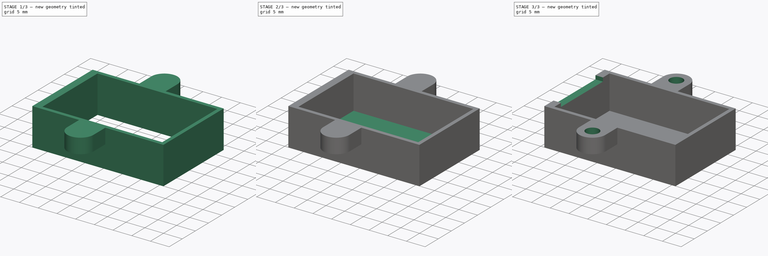
[diagram: build sequence overview — one tinted view per stage of 3, left to right]
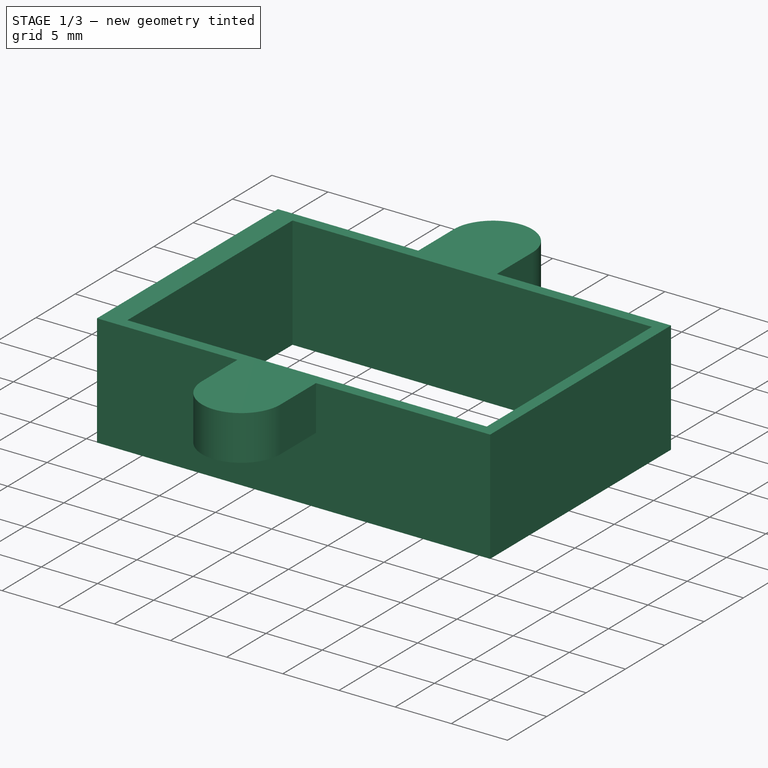
[diagram: stage 1 of 3 — iso view after this stage's code; geometry added in this stage tinted green]
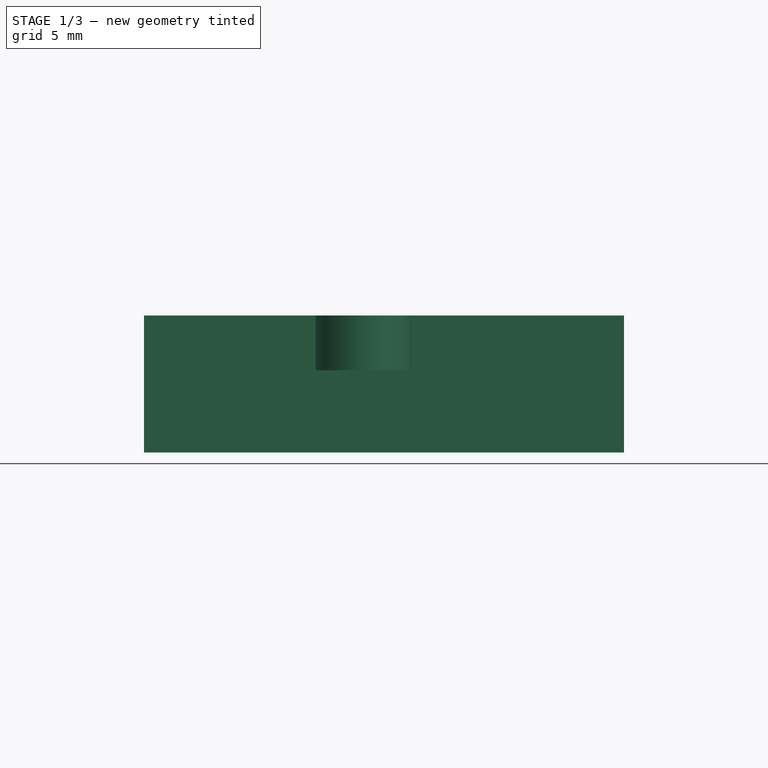
[diagram: stage 1 of 3 — front view after this stage's code; geometry added in this stage tinted green]
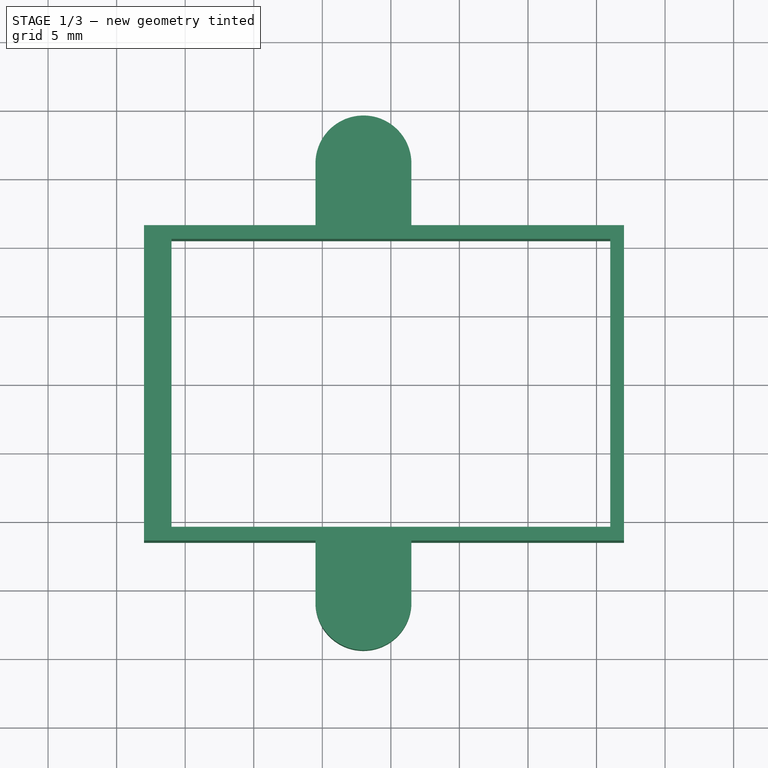
[diagram: stage 1 of 3 — top view after this stage's code; geometry added in this stage tinted green]
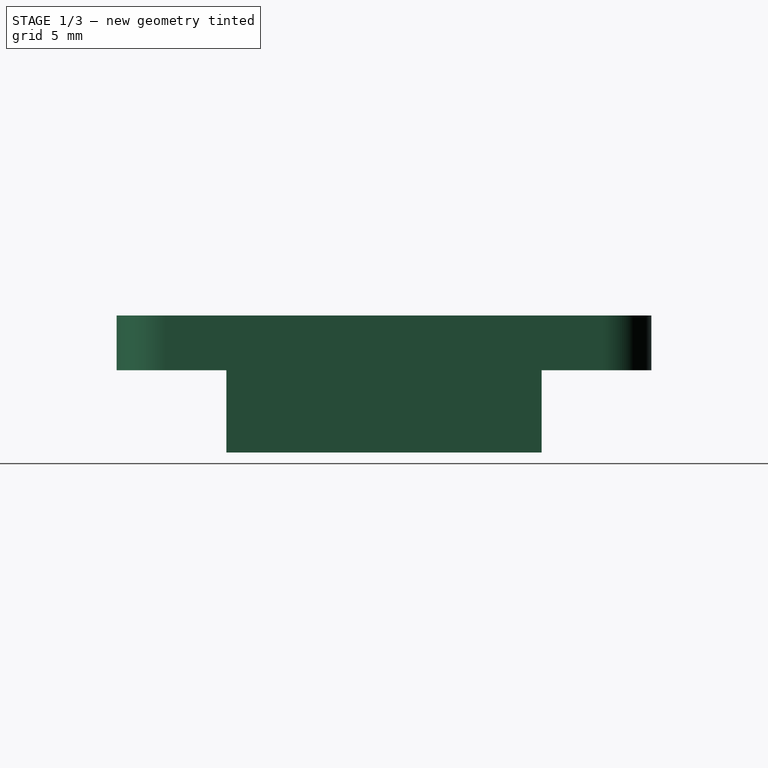
[diagram: stage 1 of 3 — right view after this stage's code; geometry added in this stage tinted green]
FCSTD DOCUMENT  (FreeCAD 1.0R38641 +678 (Git))
Label: accel-box
License: All rights reserved
LicenseURL: https://en.wikipedia.org/wiki/All_rights_reserved
objects: Sketcher::SketchObject×5, PartDesign::Pad×3, PartDesign::Pocket×1, PartDesign::Hole×1, PartDesign::Body×1
note: 26 computed .brp shape members not serialized (recipe doc carries the construction recipe); baked Part::Feature solids carry a one-line shape summary decoded from their .brp

FEATURE [Sketcher::SketchObject] Sketch270
  ArcFitTolerance = 0
  FullyConstrained = true
  MakeInternals = false
  MapMode = 5
  Placement = pos=(0,0,-20) rot=(1,0,0;3.14159rad)
  sketch-geometry (20):
    g0: LineSegment [constr] StartX=-4 StartY=10.5 StartZ=0 EndX=-4 EndY=-10.5 EndZ=0
    g1: LineSegment [constr] StartX=-4 StartY=-10.5 StartZ=0 EndX=-36 EndY=-10.5 EndZ=0
    g2: LineSegment [constr] StartX=-4 StartY=10.5 StartZ=0 EndX=-36 EndY=10.5 EndZ=0
    g3: LineSegment [constr] StartX=-36 StartY=10.5 StartZ=0 EndX=-36 EndY=-10.5 EndZ=0
    g4: ArcOfCircle CenterX=-22 CenterY=16 CenterZ=0 NormalX=0 NormalY=0 NormalZ=1 AngleXU=0 Radius=3.5 StartAngle=0 EndAngle=3.14159
    g5: ArcOfCircle CenterX=-22 CenterY=-16 CenterZ=0 NormalX=0 NormalY=0 NormalZ=1 AngleXU=0 Radius=3.5 StartAngle=3.14159 EndAngle=6.28319
    g6: LineSegment StartX=-3 StartY=11.5 StartZ=0 EndX=-18.5 EndY=11.5 EndZ=0
    g7: LineSegment StartX=-38 StartY=11.5 StartZ=0 EndX=-38 EndY=-11.5 EndZ=0
    g8: LineSegment StartX=-38 StartY=-11.5 StartZ=0 EndX=-25.5 EndY=-11.5 EndZ=0
    g9: LineSegment StartX=-3 StartY=11.5 StartZ=0 EndX=-3 EndY=-11.5 EndZ=0
    g10: LineSegment StartX=-36 StartY=10.5 StartZ=0 EndX=-36 EndY=-10.5 EndZ=0
    g11: LineSegment StartX=-36 StartY=-10.5 StartZ=0 EndX=-4 EndY=-10.5 EndZ=0
    g12: LineSegment StartX=-4 StartY=-10.5 StartZ=0 EndX=-4 EndY=10.5 EndZ=0
    g13: LineSegment StartX=-4 StartY=10.5 StartZ=0 EndX=-36 EndY=10.5 EndZ=0
    g14: LineSegment StartX=-25.5 StartY=11.5 StartZ=0 EndX=-25.5 EndY=16 EndZ=0
    g15: LineSegment StartX=-18.5 StartY=11.5 StartZ=0 EndX=-18.5 EndY=16 EndZ=0
    g16: LineSegment StartX=-25.5 StartY=11.5 StartZ=0 EndX=-38 EndY=11.5 EndZ=0
    g17: LineSegment StartX=-25.5 StartY=-11.5 StartZ=0 EndX=-25.5 EndY=-16 EndZ=0
    g18: LineSegment StartX=-18.5 StartY=-11.5 StartZ=0 EndX=-18.5 EndY=-16 EndZ=0
    g19: LineSegment StartX=-18.5 StartY=-11.5 StartZ=0 EndX=-3 EndY=-11.5 EndZ=0
  constraints (54):
    c: Vertical(g0)
    c: Coincident(g1,g0)
    c: Horizontal(g1)
    c: Coincident(g2,g0)
    c: Horizontal(g2)
    c: Coincident(g3,g2)
    c: Coincident(g3,g1)
    c: Vertical(g3)
    c: Distance(g0) = 21
    c: Distance(g1) = 32
    c: Distance(g-1,g2) = 10.5
    c: Distance(g-1,g0) = 4
    c: Diameter(g4) = 7
    c: DistanceY(g-1,g4) = 16
    c: DistanceY(g-1,g5) = -16
    c: DistanceX(g-2,g4) = -22
    c: DistanceX(g-2,g5) = -22
    c: Equal(g5,g4)
    c: Horizontal(g6)
    c: Coincident(g7,g16)
    c: Vertical(g7)
    c: Coincident(g8,g7)
    c: Horizontal(g8)
    c: Coincident(g9,g6)
    c: Coincident(g9,g19)
    c: Vertical(g9)
    c: Coincident(g10,g2)
    c: Coincident(g10,g1)
    c: Coincident(g11,g10)
    c: Coincident(g11,g0)
    c: Coincident(g12,g11)
    c: Coincident(g12,g0)
    c: Coincident(g13,g12)
    c: Coincident(g13,g10)
    c: Distance(g12,g6) = 1
    c: Distance(g16,g10) = 2
    c: Distance(g19,g11) = 1
    c: Vertical(g14)
    c: Vertical(g15)
    c: Tangent(g4,g14) = 1.5708
    c: Tangent(g4,g15) = -1.5708
    c: Coincident(g6,g15)
    c: Coincident(g16,g14)
    c: Distance(g10,g16) = 1
    c: Horizontal(g16)
    c: Vertical(g18)
    c: Vertical(g17)
    c: Coincident(g8,g17)
    c: Coincident(g19,g18)
    c: Tangent(g5,g18) = 1.5708
    c: Tangent(g5,g17) = -1.5708
    c: Horizontal(g19)
    c: Distance(g10,g8) = 1
    c: Distance(g12,g9) = 1
FEATURE [PartDesign::Pad] Pad127
  Direction = (0,-1e-16,-1)
  Length = 4
  Length2 = 10
  Placement = pos=(0,0,-20) rot=(1,0,0;3.14159rad)
  Profile = -> Sketch270
  ReferenceAxis = -> Sketch270 [N_Axis]
  Suppressed = false
  Type = 0
FEATURE [Sketcher::SketchObject] Sketch271
  ArcFitTolerance = 0
  FullyConstrained = true
  MakeInternals = false
  MapMode = 5
  Placement = pos=(0,0,-20) rot=(1,0,0;3.14159rad)
  sketch-geometry (12):
    g0: LineSegment [constr] StartX=-4 StartY=10.5 StartZ=0 EndX=-4 EndY=-10.5 EndZ=0
    g1: LineSegment [constr] StartX=-4 StartY=-10.5 StartZ=0 EndX=-36 EndY=-10.5 EndZ=0
    g2: LineSegment [constr] StartX=-4 StartY=10.5 StartZ=0 EndX=-36 EndY=10.5 EndZ=0
    g3: LineSegment [constr] StartX=-36 StartY=10.5 StartZ=0 EndX=-36 EndY=-10.5 EndZ=0
    g4: LineSegment StartX=-38 StartY=11.5 StartZ=0 EndX=-38 EndY=-11.5 EndZ=0
    g5: LineSegment StartX=-38 StartY=-11.5 StartZ=0 EndX=-3 EndY=-11.5 EndZ=0
    g6: LineSegment StartX=-3 StartY=11.5 StartZ=0 EndX=-3 EndY=-11.5 EndZ=0
    g7: LineSegment StartX=-36 StartY=10.5 StartZ=0 EndX=-36 EndY=-10.5 EndZ=0
    g8: LineSegment StartX=-36 StartY=-10.5 StartZ=0 EndX=-4 EndY=-10.5 EndZ=0
    g9: LineSegment StartX=-4 StartY=-10.5 StartZ=0 EndX=-4 EndY=10.5 EndZ=0
    g10: LineSegment StartX=-4 StartY=10.5 StartZ=0 EndX=-36 EndY=10.5 EndZ=0
    g11: LineSegment StartX=-3 StartY=11.5 StartZ=0 EndX=-38 EndY=11.5 EndZ=0
  constraints (32):
    c: Vertical(g0)
    c: Coincident(g1,g0)
    c: Horizontal(g1)
    c: Coincident(g2,g0)
    c: Horizontal(g2)
    c: Coincident(g3,g2)
    c: Coincident(g3,g1)
    c: Vertical(g3)
    c: Distance(g0) = 21
    c: Distance(g1) = 32
    c: Distance(g-1,g2) = 10.5
    c: Distance(g-1,g0) = 4
    c: Coincident(g4,g11)
    c: Vertical(g4)
    c: Coincident(g5,g4)
    c: Horizontal(g5)
    c: Vertical(g6)
    c: Coincident(g7,g2)
    c: Coincident(g7,g1)
    c: Coincident(g8,g7)
    c: Coincident(g8,g0)
    c: Coincident(g9,g8)
    c: Coincident(g9,g0)
    c: Coincident(g10,g9)
    c: Coincident(g10,g7)
    c: Distance(g11,g7) = 2
    c: Distance(g7,g11) = 1
    c: Horizontal(g11)
    c: Distance(g7,g5) = 1
    c: Coincident(g11,g6)
    c: Coincident(g5,g6)
    c: Distance(g9,g6) = 1
FEATURE [PartDesign::Pad] Pad128
  BaseFeature = -> Pad127
  Direction = (0,-1e-16,-1)
  Length = 10
  Length2 = 10
  Placement = pos=(0,0,-20) rot=(1,0,0;3.14159rad)
  Profile = -> Sketch271
  ReferenceAxis = -> Sketch271 [N_Axis]
  Suppressed = false
  Type = 0
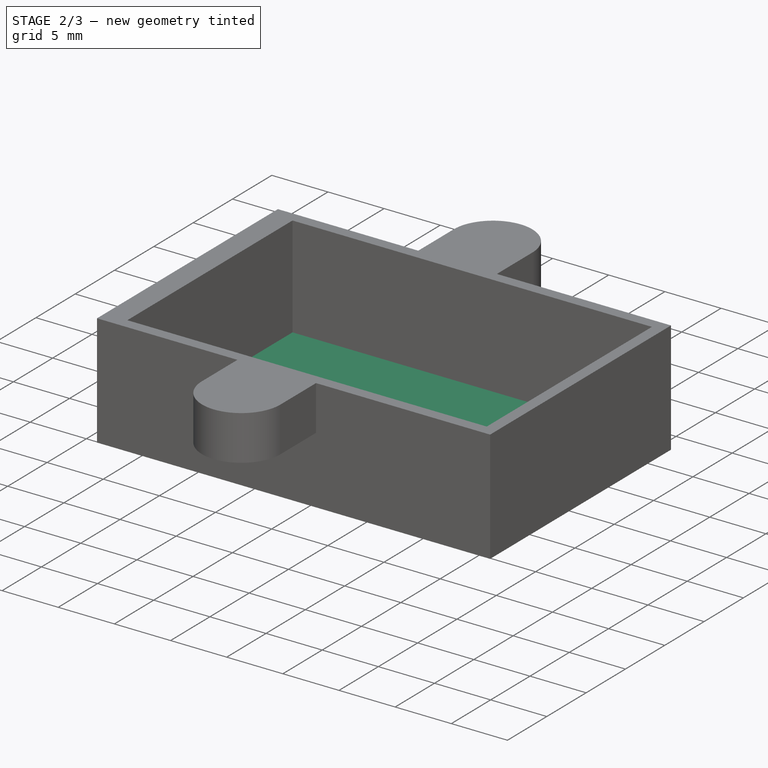
[diagram: stage 2 of 3 — iso view after this stage's code; geometry added in this stage tinted green]
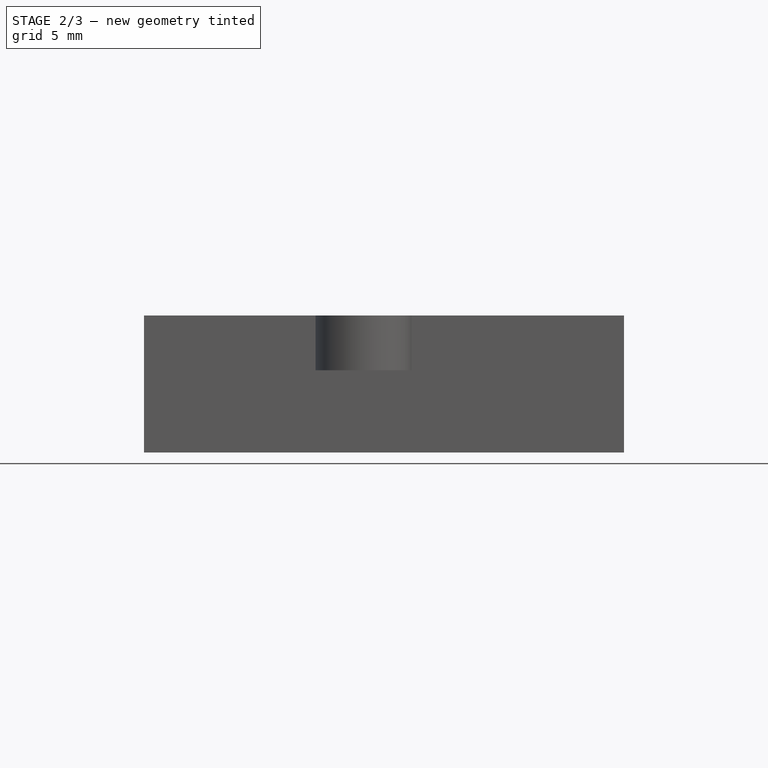
[diagram: stage 2 of 3 — front view after this stage's code; geometry added in this stage tinted green]
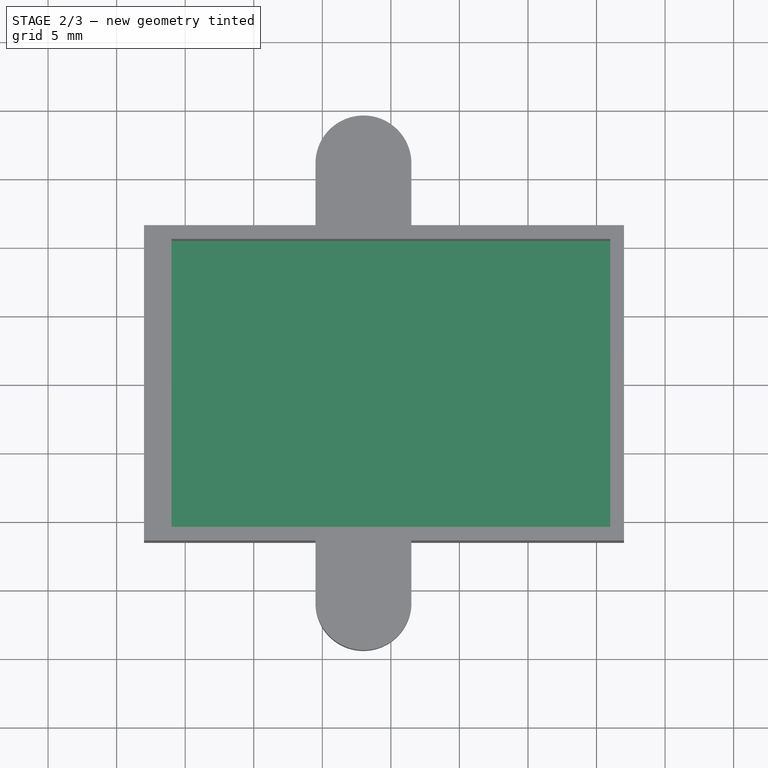
[diagram: stage 2 of 3 — top view after this stage's code; geometry added in this stage tinted green]
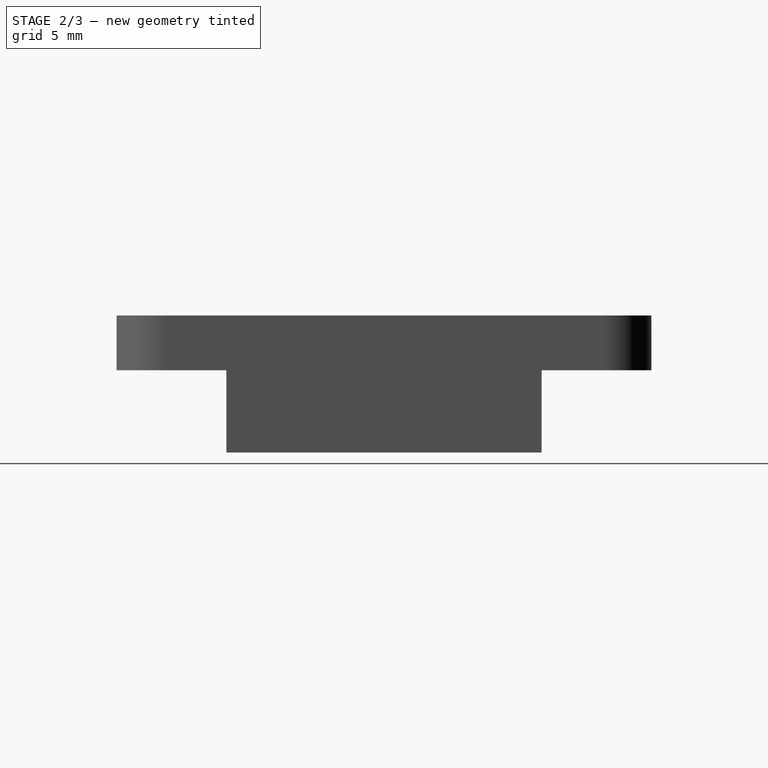
[diagram: stage 2 of 3 — right view after this stage's code; geometry added in this stage tinted green]
FEATURE [Sketcher::SketchObject] Sketch272
  ArcFitTolerance = 0
  AttachmentSupport = -> [Pad128]
  FullyConstrained = true
  MakeInternals = false
  MapMode = 5
  Placement = pos=(0,0,-30) rot=(1,0,0;3.14159rad)
  sketch-geometry (8):
    g0: LineSegment [constr] StartX=-4 StartY=10.5 StartZ=0 EndX=-4 EndY=-10.5 EndZ=0
    g1: LineSegment [constr] StartX=-4 StartY=-10.5 StartZ=0 EndX=-36 EndY=-10.5 EndZ=0
    g2: LineSegment [constr] StartX=-4 StartY=10.5 StartZ=0 EndX=-36 EndY=10.5 EndZ=0
    g3: LineSegment [constr] StartX=-36 StartY=10.5 StartZ=0 EndX=-36 EndY=-10.5 EndZ=0
    g4: LineSegment StartX=-38 StartY=11.5 StartZ=0 EndX=-38 EndY=-11.5 EndZ=0
    g5: LineSegment StartX=-38 StartY=-11.5 StartZ=0 EndX=-3 EndY=-11.5 EndZ=0
    g6: LineSegment StartX=-3 StartY=11.5 StartZ=0 EndX=-3 EndY=-11.5 EndZ=0
    g7: LineSegment StartX=-3 StartY=11.5 StartZ=0 EndX=-38 EndY=11.5 EndZ=0
  constraints (24):
    c: Vertical(g0)
    c: Coincident(g1,g0)
    c: Horizontal(g1)
    c: Coincident(g2,g0)
    c: Horizontal(g2)
    c: Coincident(g3,g2)
    c: Coincident(g3,g1)
    c: Vertical(g3)
    c: Distance(g0) = 21
    c: Distance(g1) = 32
    c: Distance(g-1,g2) = 10.5
    c: Distance(g-1,g0) = 4
    c: Coincident(g4,g7)
    c: Vertical(g4)
    c: Coincident(g5,g4)
    c: Horizontal(g5)
    c: Vertical(g6)
    c: Distance(g2,g7) = 1
    c: Horizontal(g7)
    c: Distance(g1,g5) = 1
    c: Coincident(g7,g6)
    c: Coincident(g5,g6)
    c: Distance(g4,g3) = 2
    c: Distance(g0,g6) = 1
FEATURE [PartDesign::Pad] Pad129
  BaseFeature = -> Pad128
  Direction = (0,0,-1)
  Length = 1
  Length2 = 10
  Placement = pos=(0,0,-20) rot=(1,0,0;3.14159rad)
  Profile = -> Sketch272
  ReferenceAxis = -> Sketch272 [N_Axis]
  Reversed = true
  Suppressed = false
  Type = 0
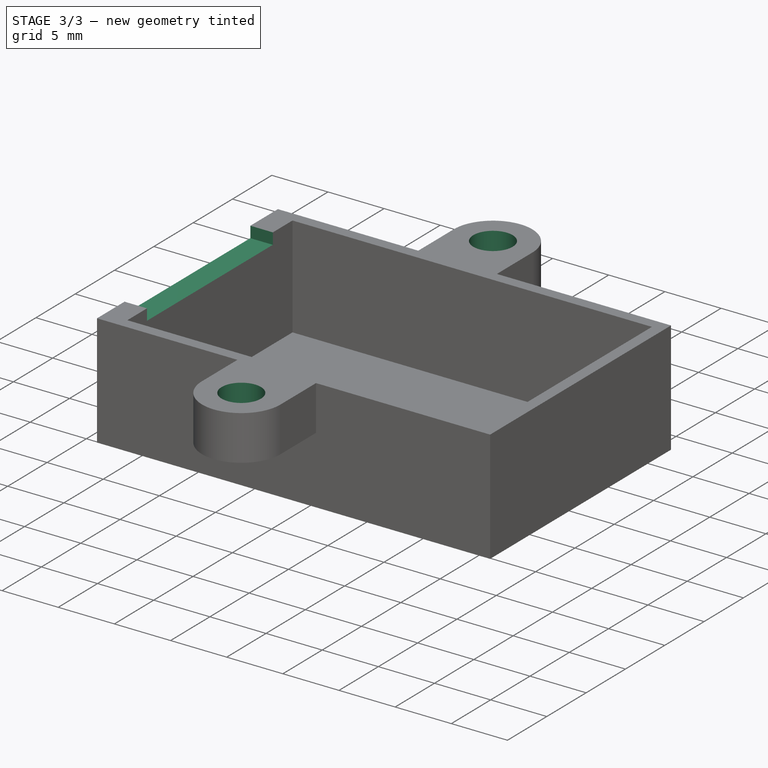
[diagram: stage 3 of 3 — iso view after this stage's code; geometry added in this stage tinted green]
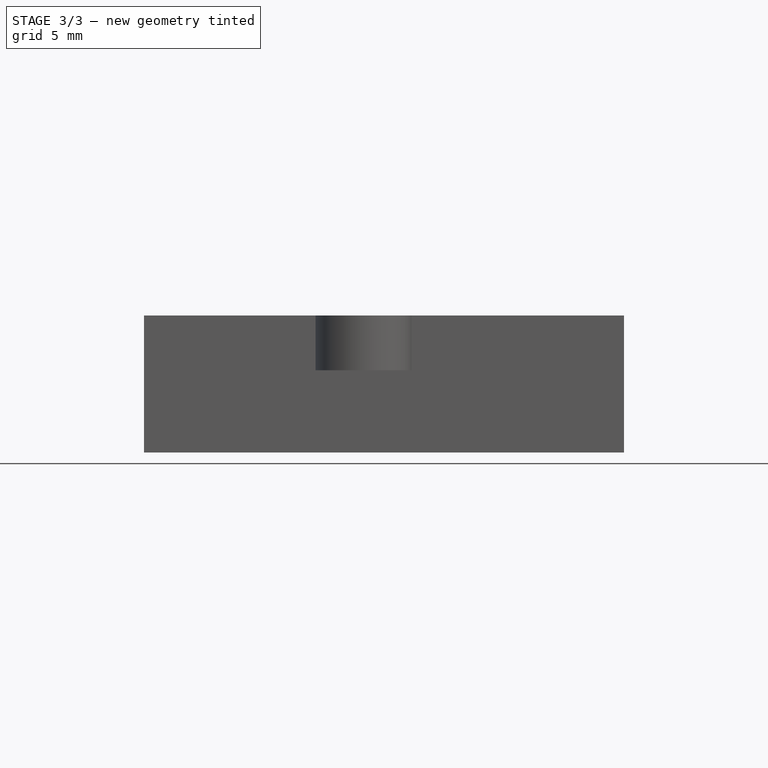
[diagram: stage 3 of 3 — front view after this stage's code; geometry added in this stage tinted green]
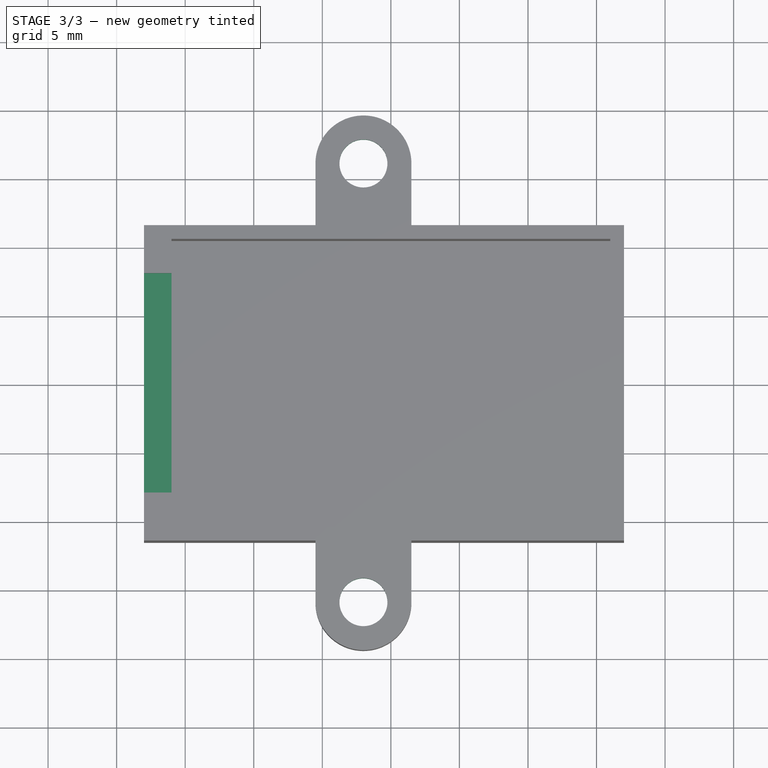
[diagram: stage 3 of 3 — top view after this stage's code; geometry added in this stage tinted green]
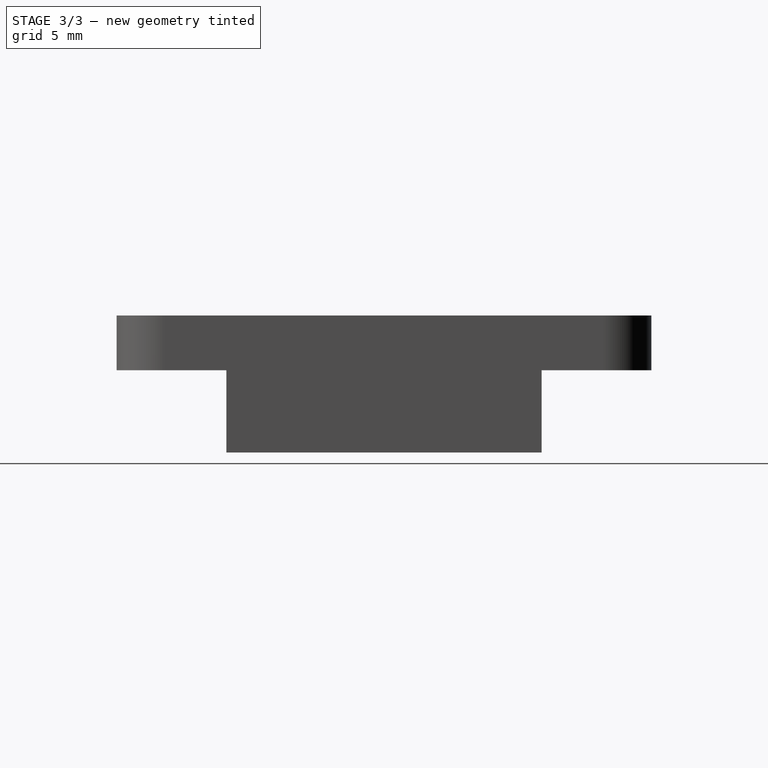
[diagram: stage 3 of 3 — right view after this stage's code; geometry added in this stage tinted green]
FEATURE [Sketcher::SketchObject] Sketch273
  ArcFitTolerance = 0
  AttachmentSupport = -> [Pad129]
  FullyConstrained = true
  MakeInternals = false
  MapMode = 5
  Placement = pos=(-38,0,-20) rot=(0.57735,0.57735,-0.57735;4.18879rad)
  sketch-geometry (4):
    g0: LineSegment StartX=-8 StartY=0 StartZ=0 EndX=8 EndY=0 EndZ=0
    g1: LineSegment StartX=8 StartY=0 StartZ=0 EndX=8 EndY=1 EndZ=0
    g2: LineSegment StartX=8 StartY=1 StartZ=0 EndX=-8 EndY=1 EndZ=0
    g3: LineSegment StartX=-8 StartY=1 StartZ=0 EndX=-8 EndY=0 EndZ=0
  constraints (12):
    c: Coincident(g0,g1)
    c: Coincident(g1,g2)
    c: Coincident(g2,g3)
    c: Coincident(g3,g0)
    c: Horizontal(g0)
    c: Horizontal(g2)
    c: Vertical(g1)
    c: Vertical(g3)
    c: PointOnObject(g0,g-1)
    c: Distance(g1) = 1
    c: DistanceX(g0,g0) = 16
    c: Distance(g-1,g3) = 8
FEATURE [PartDesign::Pocket] Pocket111
  BaseFeature = -> Pad129
  Direction = (1,0,0)
  Length = 5
  Length2 = 5
  Placement = pos=(0,0,-20) rot=(1,0,0;3.14159rad)
  Profile = -> Sketch273
  ReferenceAxis = -> Sketch273 [N_Axis]
  Suppressed = false
  Type = 0
FEATURE [Sketcher::SketchObject] Sketch274
  ArcFitTolerance = 0
  AttachmentSupport = -> [Pocket111]
  FullyConstrained = true
  MakeInternals = false
  MapMode = 5
  Placement = pos=(0,0,-24) rot=(1,0,0;3.14159rad)
  sketch-geometry (2):
    g0: Circle CenterX=-22 CenterY=16 CenterZ=0 NormalX=0 NormalY=0 NormalZ=1 AngleXU=0 Radius=1.75
    g1: Circle CenterX=-22 CenterY=-16 CenterZ=0 NormalX=0 NormalY=0 NormalZ=1 AngleXU=0 Radius=1.75
  constraints (6):
    c: DistanceX(g-2,g0) = -22
    c: DistanceY(g-1,g0) = 16
    c: Diameter(g0) = 3.5
    c: DistanceX(g-2,g1) = -22
    c: DistanceY(g-1,g1) = -16
    c: Equal(g0,g1)
FEATURE [PartDesign::Hole] Hole011
  BaseFeature = -> Pocket111
  CustomThreadClearance = 0
  Depth = 25
  DepthType = 0
  Diameter = 3.5
  DrillForDepth = false
  DrillPoint = 1
  DrillPointAngle = 118
  HoleCutCountersinkAngle = 90
  HoleCutCustomValues = false
  HoleCutDepth = 2.6
  HoleCutDiameter = 5.5
  HoleCutType = 1
  ModelThread = false
  Placement = pos=(0,0,-20) rot=(1,0,0;3.14159rad)
  Profile = -> Sketch274
  Suppressed = false
  Tapered = false
  TaperedAngle = 90
  ThreadClass = 0
  ThreadDepth = 25
  ThreadDepthType = 0
  ThreadDirection = 0
  ThreadFit = 0
  ThreadSize = 0
  ThreadType = 0
  Threaded = false
  UseCustomThreadClearance = false
FEATURE [PartDesign::Body] Body029  label="accel-box"
  AllowCompound = false
  Group = -> [Sketch270,Pad127,Sketch271,Pad128,Sketch272,Pad129,Sketch273,Pocket111,Sketch274,Hole011]
  Origin = -> Origin029
  Placement = pos=(-209,0,-23) rot=(0,0,1;0rad)
  Tip = -> Hole011
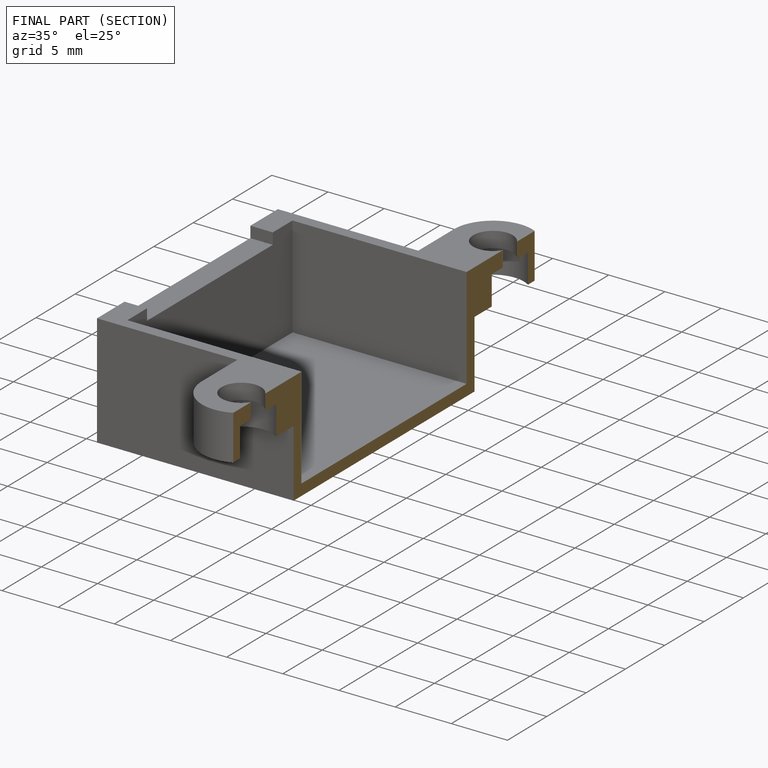
[diagram: finished part — half-section view (interior)]
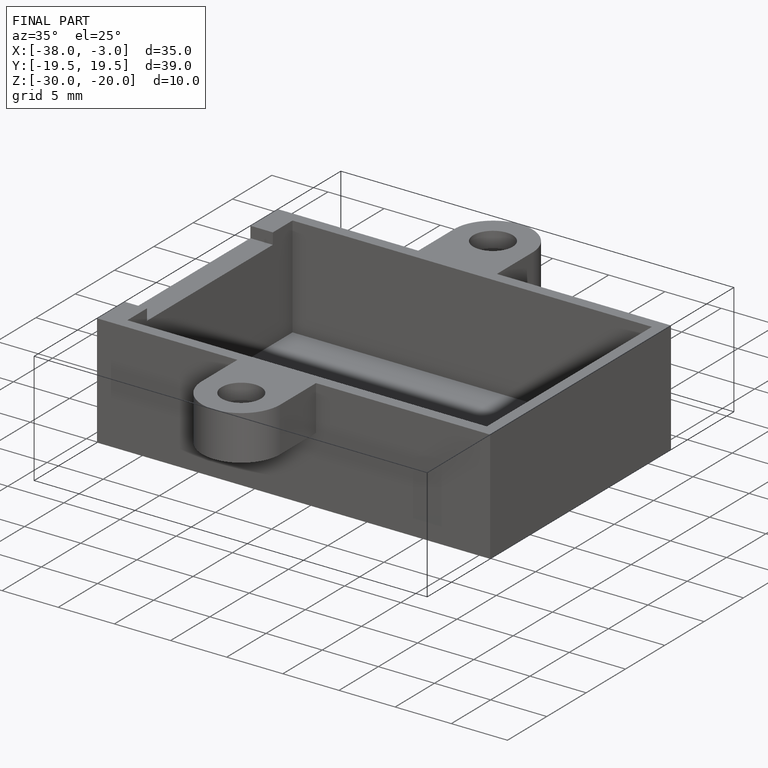
[diagram: finished part — iso view with bounding-box wireframe]
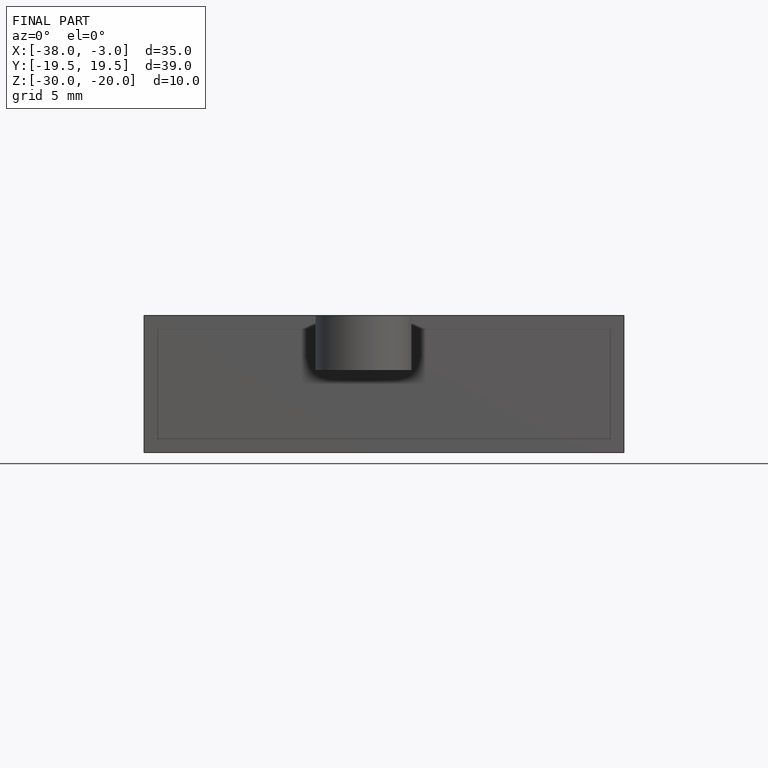
[diagram: finished part — front view with bounding-box wireframe]
